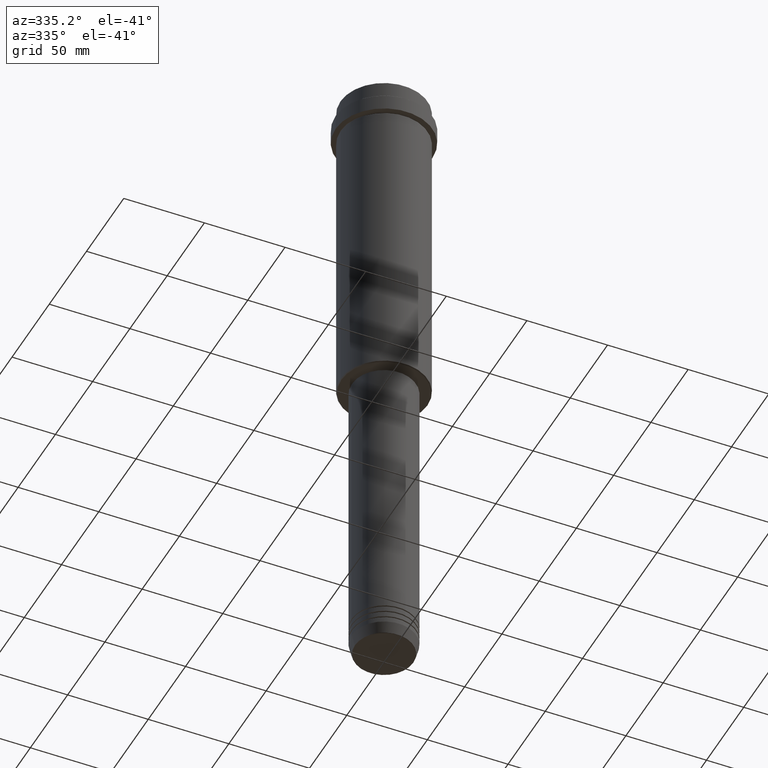
[diagram: clean part render]
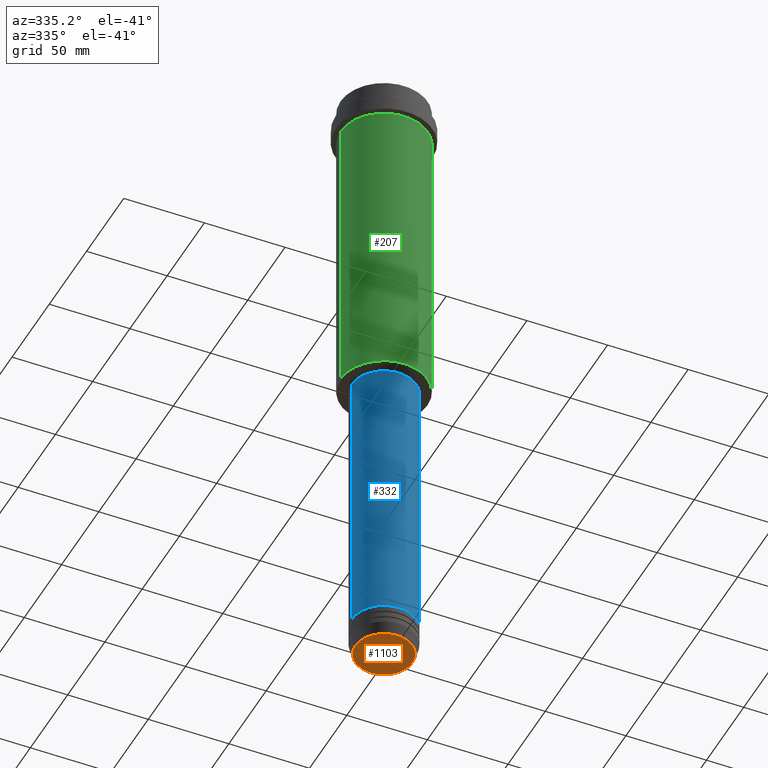
[diagram: same view with three faces highlighted in distinct colors, each labeled with its STEP entity id]
A machine part, auxiliary view with three faces highlighted in distinct colors.
Their STEP definitions:

[orange] entity #1103 — the highlighted planar face has unit normal (0, -0, 1).
#63 = CARTESIAN_POINT ( 'NONE',  ( 0.000000000000000000, 0.000000000000000000, -403.0000000000000000 ) ) ;
#196 = DIRECTION ( 'NONE',  ( 1.000000000000000000, 0.000000000000000000, 0.000000000000000000 ) ) ;
#237 = VERTEX_POINT ( 'NONE', #307 ) ;
#307 = CARTESIAN_POINT ( 'NONE',  ( -17.74069215899265473, 2.202181136001357170E-15, -403.0000000000000000 ) ) ;
#381 = ORIENTED_EDGE ( 'NONE', *, *, #828, .T. ) ;
#411 = DIRECTION ( 'NONE',  ( 0.000000000000000000, 0.000000000000000000, -1.000000000000000000 ) ) ;
#449 = ORIENTED_EDGE ( 'NONE', *, *, #1268, .T. ) ;
#477 = VERTEX_POINT ( 'NONE', #699 ) ;
#478 = FACE_OUTER_BOUND ( 'NONE', #742, .T. ) ;
#507 = CARTESIAN_POINT ( 'NONE',  ( 0.000000000000000000, 0.000000000000000000, -403.0000000000000000 ) ) ;
#590 = DIRECTION ( 'NONE',  ( 1.000000000000000000, 0.000000000000000000, 0.000000000000000000 ) ) ;
#699 = CARTESIAN_POINT ( 'NONE',  ( 17.74069215899265473, 0.000000000000000000, -403.0000000000000000 ) ) ;
#742 = EDGE_LOOP ( 'NONE', ( #449, #381 ) ) ;
#743 = DIRECTION ( 'NONE',  ( 1.000000000000000000, 0.000000000000000000, 0.000000000000000000 ) ) ;
#749 = CIRCLE ( 'NONE', #1375, 17.74069215899265473 ) ;
#807 = DIRECTION ( 'NONE',  ( 0.000000000000000000, -0.000000000000000000, 1.000000000000000000 ) ) ;
#818 = AXIS2_PLACEMENT_3D ( 'NONE', #507, #807, #590 ) ;
#828 = EDGE_CURVE ( 'NONE', #237, #477, #1113, .T. ) ;
#873 = AXIS2_PLACEMENT_3D ( 'NONE', #63, #1250, #196 ) ;
#1103 = ADVANCED_FACE ( 'NONE', ( #478 ), #1213, .F. ) ;
#1113 = CIRCLE ( 'NONE', #873, 17.74069215899265473 ) ;
#1213 = PLANE ( 'NONE',  #818 ) ;
#1250 = DIRECTION ( 'NONE',  ( 0.000000000000000000, 0.000000000000000000, -1.000000000000000000 ) ) ;
#1268 = EDGE_CURVE ( 'NONE', #477, #237, #749, .T. ) ;
#1361 = CARTESIAN_POINT ( 'NONE',  ( 0.000000000000000000, 0.000000000000000000, -403.0000000000000000 ) ) ;
#1375 = AXIS2_PLACEMENT_3D ( 'NONE', #1361, #411, #743 ) ;

[blue] entity #332 — the highlighted cylindrical surface (edge-blend (fillet) strip) has radius 20 mm, axis along (-0, -0, 1).
#83 = CARTESIAN_POINT ( 'NONE',  ( 0.000000000000000000, 0.000000000000000000, -209.0000000000001137 ) ) ;
#156 = CARTESIAN_POINT ( 'NONE',  ( -19.99999999999999645, 2.449293598294706119E-15, 0.000000000000000000 ) ) ;
#213 = AXIS2_PLACEMENT_3D ( 'NONE', #766, #469, #1101 ) ;
#272 = VECTOR ( 'NONE', #1415, 1000.000000000000000 ) ;
#332 = ADVANCED_FACE ( 'NONE', ( #1299 ), #875, .T. ) ;
#344 = EDGE_LOOP ( 'NONE', ( #1140, #1231, #438, #1204 ) ) ;
#434 = DIRECTION ( 'NONE',  ( 1.000000000000000000, 0.000000000000000000, 0.000000000000000000 ) ) ;
#436 = LINE ( 'NONE', #864, #272 ) ;
#438 = ORIENTED_EDGE ( 'NONE', *, *, #1394, .T. ) ;
#452 = EDGE_CURVE ( 'NONE', #895, #1134, #1217, .T. ) ;
#457 = VERTEX_POINT ( 'NONE', #501 ) ;
#469 = DIRECTION ( 'NONE',  ( -0.000000000000000000, -0.000000000000000000, 1.000000000000000000 ) ) ;
#489 = VECTOR ( 'NONE', #1334, 1000.000000000000000 ) ;
#501 = CARTESIAN_POINT ( 'NONE',  ( 20.00000000000000000, 0.000000000000000000, -383.9999999999998863 ) ) ;
#540 = DIRECTION ( 'NONE',  ( 1.000000000000000000, 0.000000000000000000, 0.000000000000000000 ) ) ;
#598 = AXIS2_PLACEMENT_3D ( 'NONE', #660, #1388, #434 ) ;
#611 = EDGE_CURVE ( 'NONE', #895, #457, #1197, .T. ) ;
#620 = CARTESIAN_POINT ( 'NONE',  ( 19.99999999999999645, 0.000000000000000000, -209.0000000000001137 ) ) ;
#653 = CARTESIAN_POINT ( 'NONE',  ( -20.00000000000000000, 2.449293598294706513E-15, -383.9999999999998863 ) ) ;
#660 = CARTESIAN_POINT ( 'NONE',  ( 0.000000000000000000, 0.000000000000000000, 0.000000000000000000 ) ) ;
#766 = CARTESIAN_POINT ( 'NONE',  ( 0.000000000000000000, 0.000000000000000000, -383.9999999999998863 ) ) ;
#810 = VERTEX_POINT ( 'NONE', #620 ) ;
#864 = CARTESIAN_POINT ( 'NONE',  ( 19.99999999999999645, 0.000000000000000000, 0.000000000000000000 ) ) ;
#865 = EDGE_CURVE ( 'NONE', #1134, #810, #1305, .T. ) ;
#875 = CYLINDRICAL_SURFACE ( 'NONE', #598, 19.99999999999999645 ) ;
#895 = VERTEX_POINT ( 'NONE', #653 ) ;
#941 = DIRECTION ( 'NONE',  ( -0.000000000000000000, -0.000000000000000000, 1.000000000000000000 ) ) ;
#1024 = CARTESIAN_POINT ( 'NONE',  ( -19.99999999999999645, 2.449293598294706119E-15, -209.0000000000001137 ) ) ;
#1101 = DIRECTION ( 'NONE',  ( 1.000000000000000000, 0.000000000000000000, 0.000000000000000000 ) ) ;
#1134 = VERTEX_POINT ( 'NONE', #1024 ) ;
#1140 = ORIENTED_EDGE ( 'NONE', *, *, #452, .F. ) ;
#1197 = CIRCLE ( 'NONE', #213, 20.00000000000000000 ) ;
#1204 = ORIENTED_EDGE ( 'NONE', *, *, #865, .F. ) ;
#1217 = LINE ( 'NONE', #156, #489 ) ;
#1231 = ORIENTED_EDGE ( 'NONE', *, *, #611, .T. ) ;
#1299 = FACE_OUTER_BOUND ( 'NONE', #344, .T. ) ;
#1305 = CIRCLE ( 'NONE', #1407, 19.99999999999999645 ) ;
#1334 = DIRECTION ( 'NONE',  ( -0.000000000000000000, -0.000000000000000000, 1.000000000000000000 ) ) ;
#1388 = DIRECTION ( 'NONE',  ( -0.000000000000000000, -0.000000000000000000, 1.000000000000000000 ) ) ;
#1394 = EDGE_CURVE ( 'NONE', #457, #810, #436, .T. ) ;
#1407 = AXIS2_PLACEMENT_3D ( 'NONE', #83, #941, #540 ) ;
#1415 = DIRECTION ( 'NONE',  ( -0.000000000000000000, -0.000000000000000000, 1.000000000000000000 ) ) ;

[green] entity #207 — the highlighted cylindrical surface (partial cylindrical patch) has radius 27 mm, axis along (-0, -0, 1).
#7 = EDGE_CURVE ( 'NONE', #1210, #427, #37, .T. ) ;
#14 = VECTOR ( 'NONE', #811, 1000.000000000000000 ) ;
#21 = LINE ( 'NONE', #143, #14 ) ;
#30 = DIRECTION ( 'NONE',  ( -0.000000000000000000, -0.000000000000000000, 1.000000000000000000 ) ) ;
#37 = CIRCLE ( 'NONE', #992, 26.99999999999999645 ) ;
#66 = AXIS2_PLACEMENT_3D ( 'NONE', #79, #208, #323 ) ;
#79 = CARTESIAN_POINT ( 'NONE',  ( 0.000000000000000000, 0.000000000000000000, -207.5000000000000853 ) ) ;
#96 = ORIENTED_EDGE ( 'NONE', *, *, #7, .F. ) ;
#143 = CARTESIAN_POINT ( 'NONE',  ( -26.99999999999999645, 3.306546357697853339E-15, 0.000000000000000000 ) ) ;
#180 = CARTESIAN_POINT ( 'NONE',  ( 26.99999999999999645, 0.000000000000000000, -23.00000000000000000 ) ) ;
#201 = DIRECTION ( 'NONE',  ( -0.000000000000000000, -0.000000000000000000, 1.000000000000000000 ) ) ;
#207 = ADVANCED_FACE ( 'NONE', ( #1099 ), #446, .T. ) ;
#208 = DIRECTION ( 'NONE',  ( -0.000000000000000000, -0.000000000000000000, 1.000000000000000000 ) ) ;
#230 = CARTESIAN_POINT ( 'NONE',  ( 0.000000000000000000, 0.000000000000000000, 0.000000000000000000 ) ) ;
#282 = CARTESIAN_POINT ( 'NONE',  ( -26.99999999999999645, 3.306546357697853339E-15, -23.00000000000000000 ) ) ;
#303 = LINE ( 'NONE', #1165, #647 ) ;
#316 = CARTESIAN_POINT ( 'NONE',  ( 0.000000000000000000, 0.000000000000000000, -23.00000000000000000 ) ) ;
#323 = DIRECTION ( 'NONE',  ( -1.000000000000000000, 0.000000000000000000, 0.000000000000000000 ) ) ;
#427 = VERTEX_POINT ( 'NONE', #180 ) ;
#446 = CYLINDRICAL_SURFACE ( 'NONE', #775, 26.99999999999999645 ) ;
#453 = ORIENTED_EDGE ( 'NONE', *, *, #642, .T. ) ;
#513 = EDGE_CURVE ( 'NONE', #564, #1210, #21, .T. ) ;
#564 = VERTEX_POINT ( 'NONE', #1387 ) ;
#575 = DIRECTION ( 'NONE',  ( 1.000000000000000000, 0.000000000000000000, 0.000000000000000000 ) ) ;
#642 = EDGE_CURVE ( 'NONE', #564, #1223, #996, .T. ) ;
#647 = VECTOR ( 'NONE', #201, 1000.000000000000000 ) ;
#746 = DIRECTION ( 'NONE',  ( 1.000000000000000000, 0.000000000000000000, 0.000000000000000000 ) ) ;
#775 = AXIS2_PLACEMENT_3D ( 'NONE', #230, #30, #575 ) ;
#811 = DIRECTION ( 'NONE',  ( -0.000000000000000000, -0.000000000000000000, 1.000000000000000000 ) ) ;
#957 = CARTESIAN_POINT ( 'NONE',  ( 26.99999999999999645, 0.000000000000000000, -207.5000000000000853 ) ) ;
#992 = AXIS2_PLACEMENT_3D ( 'NONE', #316, #1286, #746 ) ;
#996 = CIRCLE ( 'NONE', #66, 26.99999999999999645 ) ;
#1033 = ORIENTED_EDGE ( 'NONE', *, *, #1301, .T. ) ;
#1099 = FACE_OUTER_BOUND ( 'NONE', #1270, .T. ) ;
#1165 = CARTESIAN_POINT ( 'NONE',  ( 26.99999999999999645, 0.000000000000000000, 0.000000000000000000 ) ) ;
#1210 = VERTEX_POINT ( 'NONE', #282 ) ;
#1223 = VERTEX_POINT ( 'NONE', #957 ) ;
#1270 = EDGE_LOOP ( 'NONE', ( #1308, #453, #1033, #96 ) ) ;
#1286 = DIRECTION ( 'NONE',  ( -0.000000000000000000, -0.000000000000000000, 1.000000000000000000 ) ) ;
#1301 = EDGE_CURVE ( 'NONE', #1223, #427, #303, .T. ) ;
#1308 = ORIENTED_EDGE ( 'NONE', *, *, #513, .F. ) ;
#1387 = CARTESIAN_POINT ( 'NONE',  ( -26.99999999999999645, 3.306546357697853339E-15, -207.5000000000000853 ) ) ;